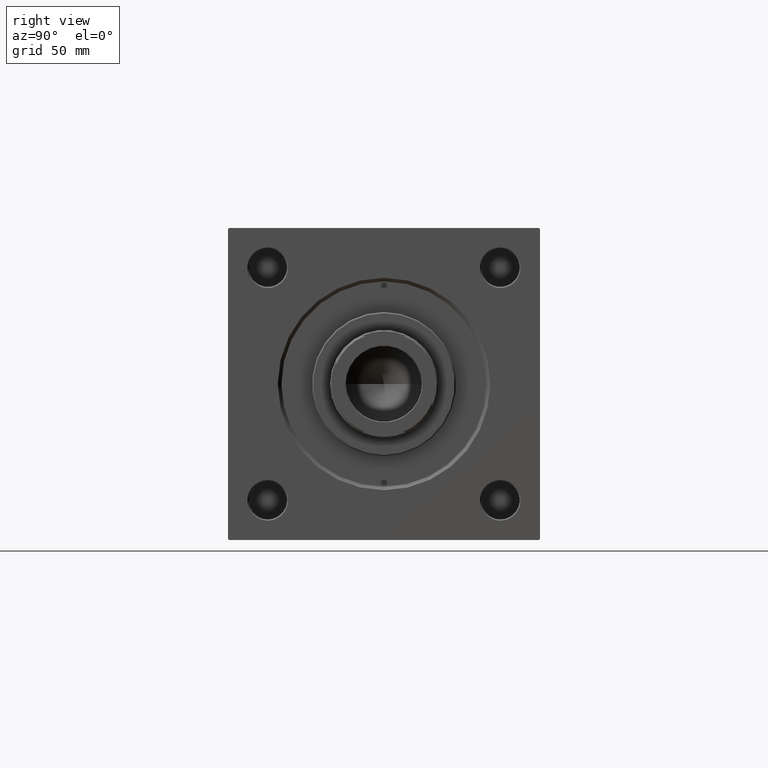
[diagram: clean part render]
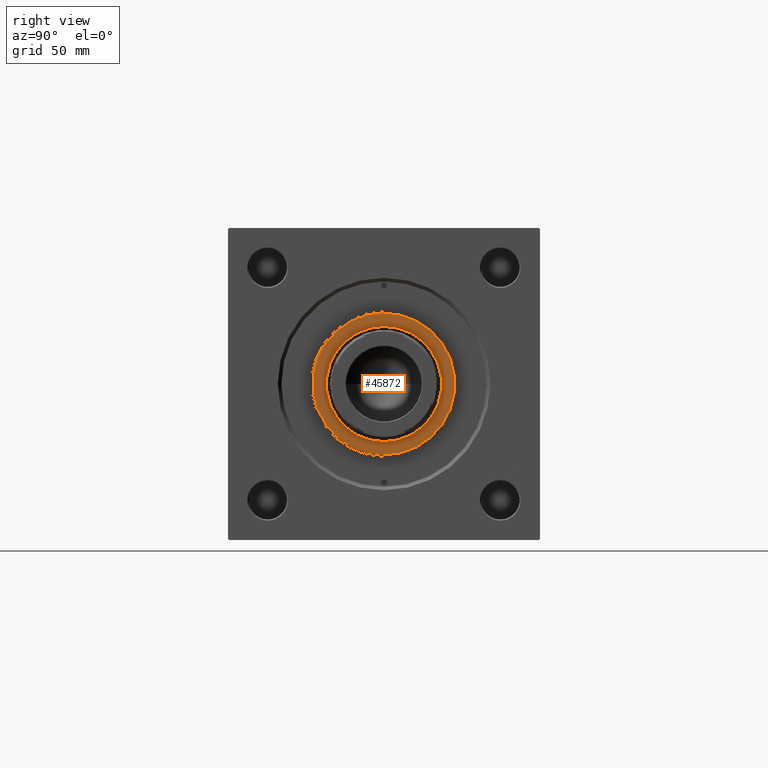
[diagram: same view with one face highlighted and labeled with its STEP entity id]
A machine part, right view. The second image highlights one B-rep face of the part: STEP entity #45872.
In plain terms, the highlighted planar face has unit normal (1, 0, 0).
Its self-contained STEP definition (entity closure, byte-faithful):
#2339 = EDGE_CURVE ( 'NONE', #32972, #46148, #22530, .T. ) ;
#2409 = VERTEX_POINT ( 'NONE', #30892 ) ;
#3358 = CARTESIAN_POINT ( 'NONE',  ( 24.00000000000000355, 0.000000000000000000, 37.69999999999999574 ) ) ;
#3775 = DIRECTION ( 'NONE',  ( 1.000000000000000000, 0.000000000000000000, -0.000000000000000000 ) ) ;
#4038 = CARTESIAN_POINT ( 'NONE',  ( 0.000000000000000000, 0.000000000000000000, 37.69999999999999574 ) ) ;
#4133 = FACE_OUTER_BOUND ( 'NONE', #24306, .T. ) ;
#5432 = CIRCLE ( 'NONE', #7892, 24.00000000000000355 ) ;
#7892 = AXIS2_PLACEMENT_3D ( 'NONE', #42945, #31639, #31131 ) ;
#11599 = ORIENTED_EDGE ( 'NONE', *, *, #2339, .T. ) ;
#16182 = AXIS2_PLACEMENT_3D ( 'NONE', #4038, #35115, #3775 ) ;
#17228 = CARTESIAN_POINT ( 'NONE',  ( 0.000000000000000000, 0.000000000000000000, 37.69999999999999574 ) ) ;
#21865 = CIRCLE ( 'NONE', #44008, 29.50000000000000000 ) ;
#22205 = ORIENTED_EDGE ( 'NONE', *, *, #40775, .F. ) ;
#22530 = CIRCLE ( 'NONE', #47973, 29.50000000000000000 ) ;
#23656 = FACE_BOUND ( 'NONE', #43247, .T. ) ;
#24228 = CARTESIAN_POINT ( 'NONE',  ( -29.50000000000000000, 0.000000000000000000, 37.69999999999999574 ) ) ;
#24306 = EDGE_LOOP ( 'NONE', ( #35574, #11599 ) ) ;
#26611 = DIRECTION ( 'NONE',  ( 0.000000000000000000, 0.000000000000000000, 1.000000000000000000 ) ) ;
#26894 = PLANE ( 'NONE',  #16182 ) ;
#27800 = CIRCLE ( 'NONE', #42577, 24.00000000000000355 ) ;
#30223 = CARTESIAN_POINT ( 'NONE',  ( 0.000000000000000000, 0.000000000000000000, 37.69999999999999574 ) ) ;
#30892 = CARTESIAN_POINT ( 'NONE',  ( -24.00000000000000355, 2.939152317953648289E-15, 37.69999999999999574 ) ) ;
#31131 = DIRECTION ( 'NONE',  ( 1.000000000000000000, 0.000000000000000000, 0.000000000000000000 ) ) ;
#31639 = DIRECTION ( 'NONE',  ( 0.000000000000000000, 0.000000000000000000, 1.000000000000000000 ) ) ;
#32176 = CARTESIAN_POINT ( 'NONE',  ( 29.50000000000000000, 3.643324227463375391E-15, 37.69999999999999574 ) ) ;
#32972 = VERTEX_POINT ( 'NONE', #32176 ) ;
#33381 = VERTEX_POINT ( 'NONE', #3358 ) ;
#34226 = DIRECTION ( 'NONE',  ( 0.000000000000000000, 0.000000000000000000, 1.000000000000000000 ) ) ;
#35115 = DIRECTION ( 'NONE',  ( 0.000000000000000000, 0.000000000000000000, 1.000000000000000000 ) ) ;
#35574 = ORIENTED_EDGE ( 'NONE', *, *, #40902, .T. ) ;
#36752 = DIRECTION ( 'NONE',  ( 0.000000000000000000, 0.000000000000000000, 1.000000000000000000 ) ) ;
#38172 = DIRECTION ( 'NONE',  ( 1.000000000000000000, 0.000000000000000000, 0.000000000000000000 ) ) ;
#38850 = DIRECTION ( 'NONE',  ( 1.000000000000000000, 0.000000000000000000, 0.000000000000000000 ) ) ;
#40775 = EDGE_CURVE ( 'NONE', #33381, #2409, #5432, .T. ) ;
#40902 = EDGE_CURVE ( 'NONE', #46148, #32972, #21865, .T. ) ;
#41108 = DIRECTION ( 'NONE',  ( 1.000000000000000000, 0.000000000000000000, 0.000000000000000000 ) ) ;
#42577 = AXIS2_PLACEMENT_3D ( 'NONE', #30223, #26611, #38172 ) ;
#42945 = CARTESIAN_POINT ( 'NONE',  ( 0.000000000000000000, 0.000000000000000000, 37.69999999999999574 ) ) ;
#43171 = ORIENTED_EDGE ( 'NONE', *, *, #50241, .F. ) ;
#43247 = EDGE_LOOP ( 'NONE', ( #22205, #43171 ) ) ;
#44008 = AXIS2_PLACEMENT_3D ( 'NONE', #17228, #36752, #41108 ) ;
#45872 = ADVANCED_FACE ( 'NONE', ( #23656, #4133 ), #26894, .T. ) ;
#46148 = VERTEX_POINT ( 'NONE', #24228 ) ;
#47973 = AXIS2_PLACEMENT_3D ( 'NONE', #49637, #34226, #38850 ) ;
#49637 = CARTESIAN_POINT ( 'NONE',  ( 0.000000000000000000, 0.000000000000000000, 37.69999999999999574 ) ) ;
#50241 = EDGE_CURVE ( 'NONE', #2409, #33381, #27800, .T. ) ;